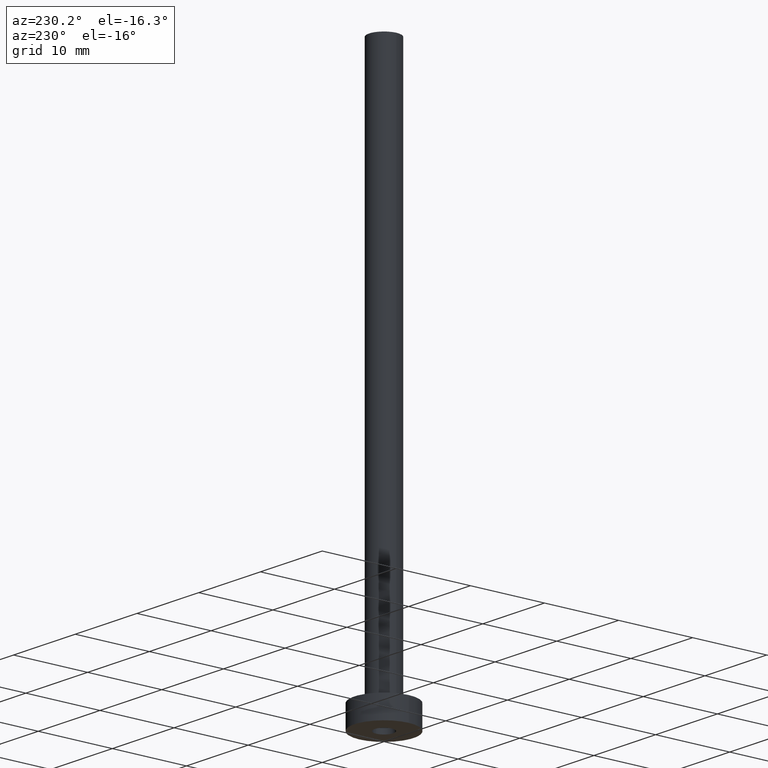
[diagram: clean part render]
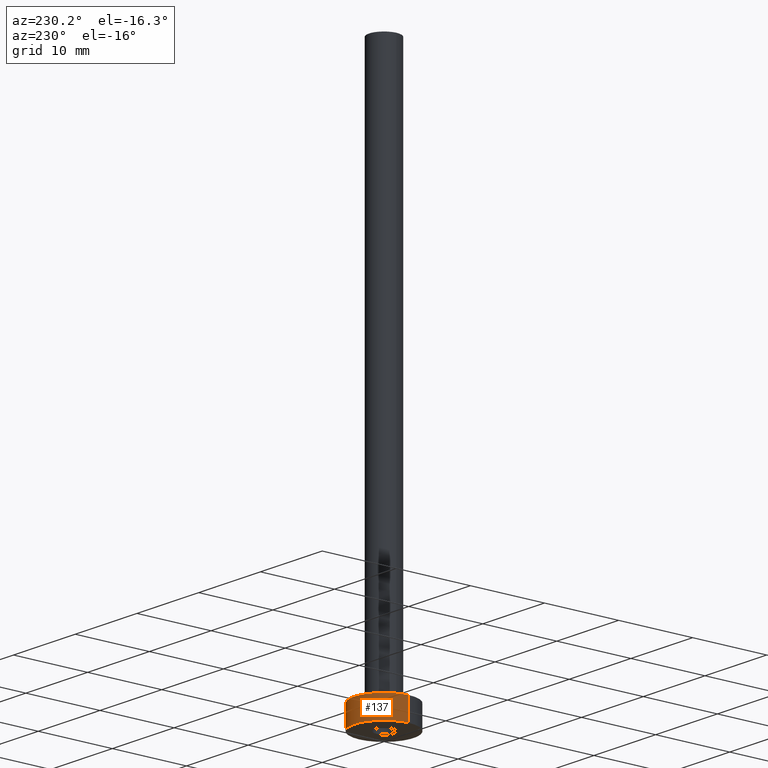
[diagram: same view with one face highlighted and labeled with its STEP entity id]
A machine part, auxiliary view. The second image highlights one B-rep face of the part: STEP entity #137.
In plain terms, the highlighted cylindrical surface (partial cylindrical patch) has radius 4 mm, axis along (-0, -0, -1).
Its self-contained STEP definition (entity closure, byte-faithful):
#7 = FACE_OUTER_BOUND ( 'NONE', #175, .T. ) ;
#10 = ORIENTED_EDGE ( 'NONE', *, *, #103, .F. ) ;
#12 = AXIS2_PLACEMENT_3D ( 'NONE', #85, #60, #19 ) ;
#19 = DIRECTION ( 'NONE',  ( 1.000000000000000000, 0.000000000000000000, 0.000000000000000000 ) ) ;
#28 = EDGE_CURVE ( 'NONE', #446, #59, #432, .T. ) ;
#59 = VERTEX_POINT ( 'NONE', #401 ) ;
#60 = DIRECTION ( 'NONE',  ( 0.000000000000000000, 0.000000000000000000, 1.000000000000000000 ) ) ;
#62 = ORIENTED_EDGE ( 'NONE', *, *, #436, .F. ) ;
#81 = DIRECTION ( 'NONE',  ( 1.000000000000000000, 0.000000000000000000, 0.000000000000000000 ) ) ;
#85 = CARTESIAN_POINT ( 'NONE',  ( 0.000000000000000000, 0.000000000000000000, 0.000000000000000000 ) ) ;
#94 = VECTOR ( 'NONE', #306, 1000.000000000000000 ) ;
#103 = EDGE_CURVE ( 'NONE', #446, #214, #119, .T. ) ;
#111 = DIRECTION ( 'NONE',  ( -0.000000000000000000, -0.000000000000000000, -1.000000000000000000 ) ) ;
#119 = CIRCLE ( 'NONE', #387, 4.000000000000000000 ) ;
#127 = ORIENTED_EDGE ( 'NONE', *, *, #247, .T. ) ;
#132 = ORIENTED_EDGE ( 'NONE', *, *, #28, .T. ) ;
#137 = ADVANCED_FACE ( 'NONE', ( #7 ), #229, .T. ) ;
#139 = CARTESIAN_POINT ( 'NONE',  ( 0.000000000000000000, 0.000000000000000000, 3.000000000000000000 ) ) ;
#151 = CIRCLE ( 'NONE', #12, 4.000000000000000000 ) ;
#175 = EDGE_LOOP ( 'NONE', ( #10, #132, #127, #62 ) ) ;
#181 = CARTESIAN_POINT ( 'NONE',  ( 0.000000000000000000, 0.000000000000000000, 3.000000000000000000 ) ) ;
#187 = VECTOR ( 'NONE', #111, 1000.000000000000000 ) ;
#188 = DIRECTION ( 'NONE',  ( -1.000000000000000000, 0.000000000000000000, 0.000000000000000000 ) ) ;
#214 = VERTEX_POINT ( 'NONE', #414 ) ;
#229 = CYLINDRICAL_SURFACE ( 'NONE', #451, 4.000000000000000000 ) ;
#233 = CARTESIAN_POINT ( 'NONE',  ( -4.000000000000000000, 0.000000000000000000, 0.000000000000000000 ) ) ;
#247 = EDGE_CURVE ( 'NONE', #59, #249, #151, .T. ) ;
#249 = VERTEX_POINT ( 'NONE', #233 ) ;
#253 = CARTESIAN_POINT ( 'NONE',  ( 4.000000000000000000, 4.898587196589412829E-16, 3.000000000000000000 ) ) ;
#296 = DIRECTION ( 'NONE',  ( -0.000000000000000000, -0.000000000000000000, -1.000000000000000000 ) ) ;
#306 = DIRECTION ( 'NONE',  ( -0.000000000000000000, -0.000000000000000000, -1.000000000000000000 ) ) ;
#331 = CARTESIAN_POINT ( 'NONE',  ( -4.000000000000000000, 0.000000000000000000, 3.000000000000000000 ) ) ;
#336 = DIRECTION ( 'NONE',  ( 0.000000000000000000, 0.000000000000000000, 1.000000000000000000 ) ) ;
#387 = AXIS2_PLACEMENT_3D ( 'NONE', #139, #336, #81 ) ;
#399 = CARTESIAN_POINT ( 'NONE',  ( 4.000000000000000000, 4.898587196589412829E-16, 3.000000000000000000 ) ) ;
#401 = CARTESIAN_POINT ( 'NONE',  ( 4.000000000000000000, 4.898587196589412829E-16, 0.000000000000000000 ) ) ;
#414 = CARTESIAN_POINT ( 'NONE',  ( -4.000000000000000000, 0.000000000000000000, 3.000000000000000000 ) ) ;
#431 = LINE ( 'NONE', #331, #94 ) ;
#432 = LINE ( 'NONE', #253, #187 ) ;
#436 = EDGE_CURVE ( 'NONE', #214, #249, #431, .T. ) ;
#446 = VERTEX_POINT ( 'NONE', #399 ) ;
#451 = AXIS2_PLACEMENT_3D ( 'NONE', #181, #296, #188 ) ;